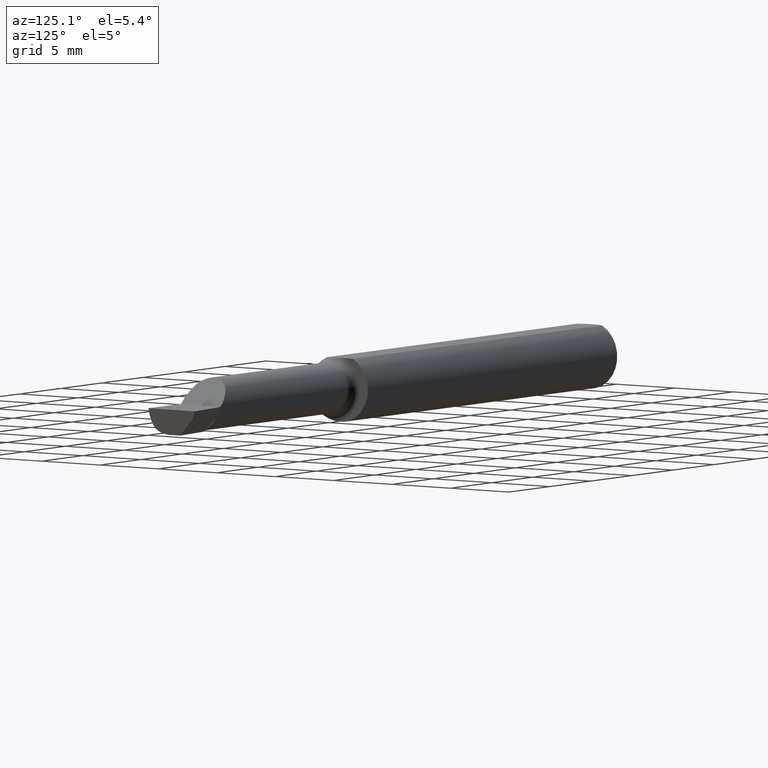
[diagram: clean part render]
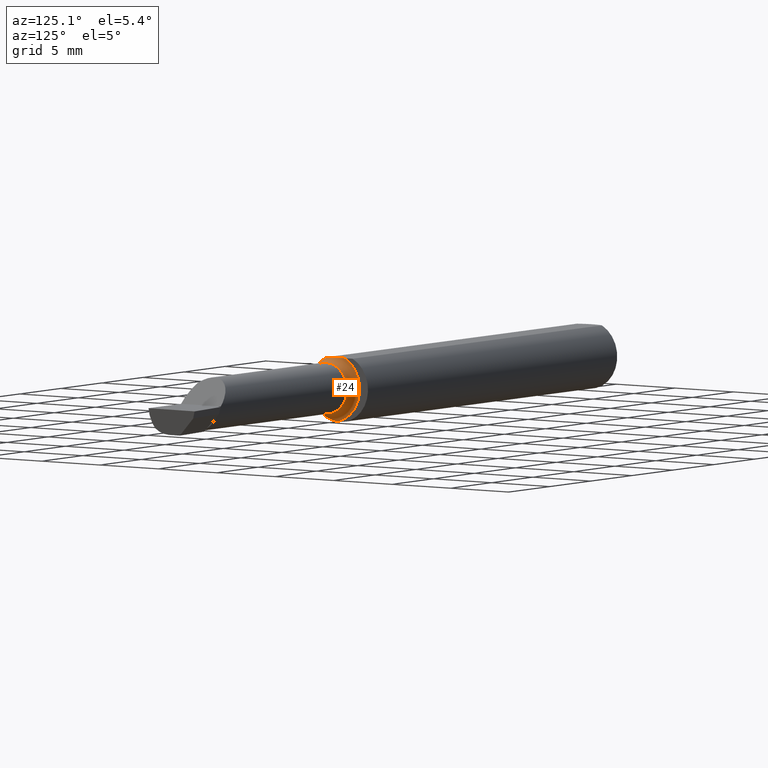
[diagram: same view with one face highlighted and labeled with its STEP entity id]
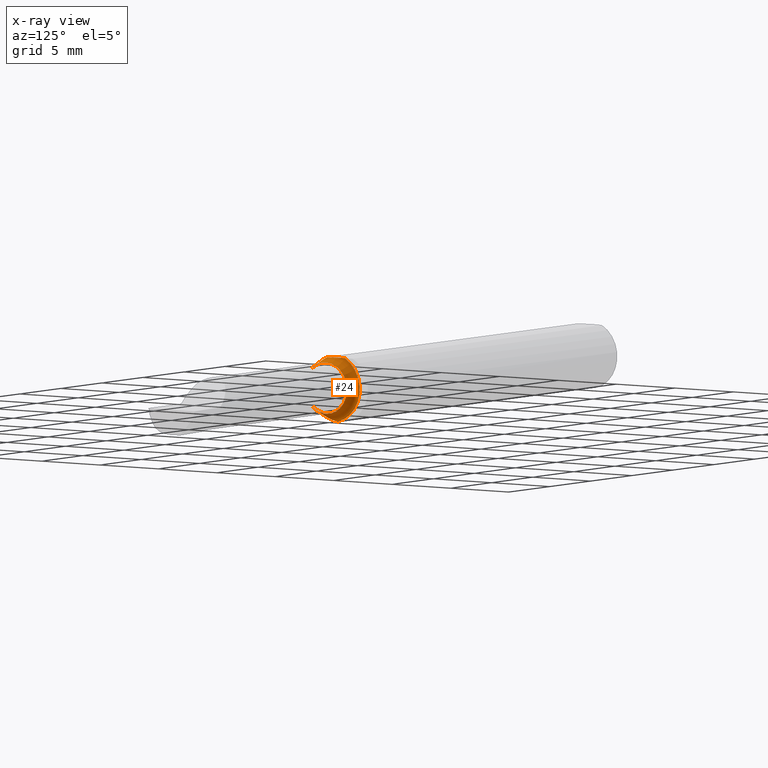
[diagram: x-ray of the same camera — body ghosted, the highlighted face saturated]
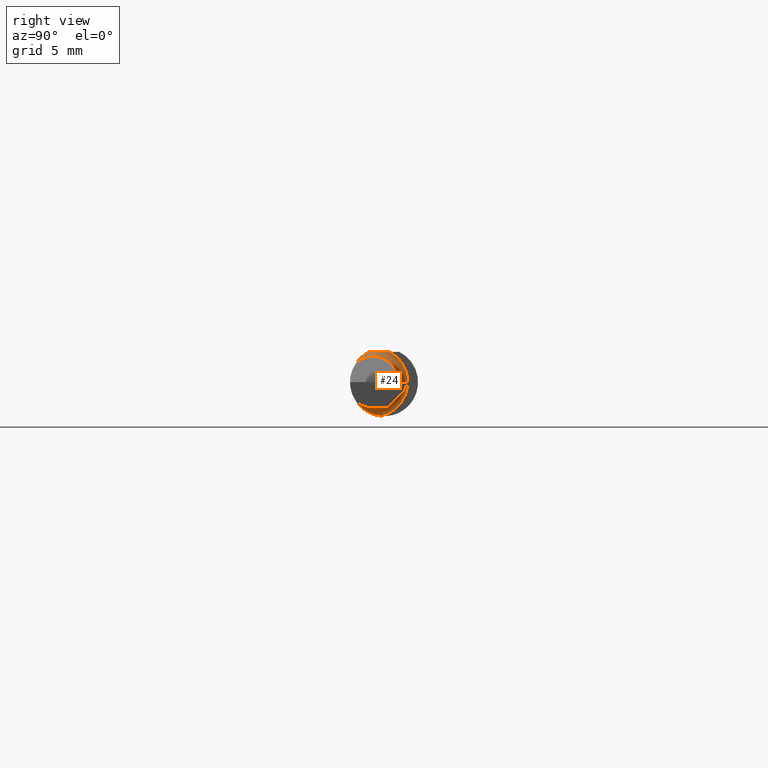
[diagram: same view with one face highlighted and labeled with its STEP entity id]
A machine part, auxiliary view. The second image highlights one B-rep face of the part: STEP entity #24.
The next image is the same camera in x-ray: the body ghosted, the highlighted face saturated — about 0% of this face is hidden behind the body in this view.
A second angle (right view) of the same face is appended — the face is thin or edge-on in the first view.
In plain terms, the highlighted toroidal blend (fillet) surface has major radius 2.4384 mm and minor (blend) radius 0.635 mm.
Its self-contained STEP definition (entity closure, byte-faithful):
#7 = CARTESIAN_POINT ( 'NONE',  ( 1.227249994923977461, -0.07326991650738474970, -0.05826485454810933357 ) ) ;
#24 = ADVANCED_FACE ( 'NONE', ( #382 ), #458, .F. ) ;
#44 = ORIENTED_EDGE ( 'NONE', *, *, #99, .F. ) ;
#49 = CARTESIAN_POINT ( 'NONE',  ( 1.222372878085588033, -0.06813570069660582207, -0.06426486695182642706 ) ) ;
#50 = CARTESIAN_POINT ( 'NONE',  ( 1.212861144841092864, -0.04209513036041390849, 0.08360000000000000764 ) ) ;
#51 = ORIENTED_EDGE ( 'NONE', *, *, #322, .T. ) ;
#53 = DIRECTION ( 'NONE',  ( -1.000000000000000000, -4.268512490100411279E-18, -0.000000000000000000 ) ) ;
#58 = DIRECTION ( 'NONE',  ( 0.000000000000000000, -1.000000000000000000, 0.000000000000000000 ) ) ;
#59 = VERTEX_POINT ( 'NONE', #50 ) ;
#85 = B_SPLINE_CURVE_WITH_KNOTS ( 'NONE', 3,
 ( #455, #318, #364, #321, #274, #267, #369, #177 ),
 .UNSPECIFIED., .F., .F.,
 ( 4, 2, 2, 4 ),
 ( 0.009574067517472211256, 0.01031724332539403835, 0.01068883122935495276, 0.01106041913331586718 ),
 .UNSPECIFIED. ) ;
#92 = B_SPLINE_CURVE_WITH_KNOTS ( 'NONE', 3,
 ( #582, #523, #296, #160, #7, #483, #49, #346, #489, #258, #446, #213, #114, #586 ),
 .UNSPECIFIED., .F., .F.,
 ( 4, 2, 2, 2, 2, 2, 4 ),
 ( 1.959461805732903391E-07, 0.0001418114856513832186, 0.0002834270251222010813, 0.0005666581040638365898, 0.001133120261947111402, 0.001699582419830386213, 0.002266044577713661242 ),
 .UNSPECIFIED. ) ;
#99 = EDGE_CURVE ( 'NONE', #283, #491, #299, .T. ) ;
#114 = CARTESIAN_POINT ( 'NONE',  ( 1.209999999999995746, -0.01523829271462613828, -0.09264723852076074684 ) ) ;
#134 = CARTESIAN_POINT ( 'NONE',  ( 1.220942860874688840, -0.06599234460544596559, 0.06650584501266759707 ) ) ;
#147 = VERTEX_POINT ( 'NONE', #154 ) ;
#154 = CARTESIAN_POINT ( 'NONE',  ( 1.234999999999999876, -0.07608366013071811429, -0.05451822320209421396 ) ) ;
#160 = CARTESIAN_POINT ( 'NONE',  ( 1.228446742734843999, -0.07415202900322766244, -0.05712995986028734929 ) ) ;
#165 = CARTESIAN_POINT ( 'NONE',  ( 1.234999999999999876, -0.03060000000000022771, 0.000000000000000000 ) ) ;
#171 = EDGE_CURVE ( 'NONE', #283, #59, #85, .T. ) ;
#177 = CARTESIAN_POINT ( 'NONE',  ( 1.212861144841092864, -0.04209513036041390849, 0.08360000000000000764 ) ) ;
#183 = CARTESIAN_POINT ( 'NONE',  ( 1.216341906786436500, -0.05682123740528505912, 0.07483672126184984230 ) ) ;
#197 = CARTESIAN_POINT ( 'NONE',  ( 1.222718485147074929, -0.06880529263944755447, 0.06356579742164532310 ) ) ;
#213 = CARTESIAN_POINT ( 'NONE',  ( 1.210327566746672412, -0.02246933888146969080, -0.09115683487700423915 ) ) ;
#237 = VERTEX_POINT ( 'NONE', #418 ) ;
#258 = CARTESIAN_POINT ( 'NONE',  ( 1.212858269845931369, -0.04306185800455388651, -0.08341374477435810342 ) ) ;
#267 = CARTESIAN_POINT ( 'NONE',  ( 1.213362255574652604, -0.03233437538769824704, 0.08360000000000003539 ) ) ;
#274 = CARTESIAN_POINT ( 'NONE',  ( 1.213154437539956110, -0.02258334521707476214, 0.08360000000000000764 ) ) ;
#283 = VERTEX_POINT ( 'NONE', #601 ) ;
#296 = CARTESIAN_POINT ( 'NONE',  ( 1.231360941731893810, -0.07557034852506704092, -0.05524018594043163255 ) ) ;
#299 = CIRCLE ( 'NONE', #460, 0.09600000000000015465 ) ;
#318 = CARTESIAN_POINT ( 'NONE',  ( 1.209999999999999742, 0.006742283091807376762, 0.08360000000000003539 ) ) ;
#321 = CARTESIAN_POINT ( 'NONE',  ( 1.212798152027436682, -0.01771129213186534504, 0.08360000000000003539 ) ) ;
#322 = EDGE_CURVE ( 'NONE', #59, #237, #575, .T. ) ;
#326 = CARTESIAN_POINT ( 'NONE',  ( 1.234999999999999876, -0.07608366013071811429, 0.05451822320209421396 ) ) ;
#343 = CIRCLE ( 'NONE', #395, 0.07100000000000014633 ) ;
#346 = CARTESIAN_POINT ( 'NONE',  ( 1.218052623108271115, -0.06089616178095316051, -0.07140423527607847598 ) ) ;
#364 = CARTESIAN_POINT ( 'NONE',  ( 1.211387404401340406, -0.003099822801829066159, 0.08359999999999999376 ) ) ;
#369 = CARTESIAN_POINT ( 'NONE',  ( 1.213209978243261711, -0.03721340473516406011, 0.08360000000000000764 ) ) ;
#381 = CARTESIAN_POINT ( 'NONE',  ( 1.227524991500364981, -0.07354719313698337979, 0.05791404302443237812 ) ) ;
#382 = FACE_OUTER_BOUND ( 'NONE', #434, .T. ) ;
#395 = AXIS2_PLACEMENT_3D ( 'NONE', #165, #53, #398 ) ;
#398 = DIRECTION ( 'NONE',  ( 0.000000000000000000, -1.000000000000000000, 0.000000000000000000 ) ) ;
#409 = ORIENTED_EDGE ( 'NONE', *, *, #171, .T. ) ;
#418 = CARTESIAN_POINT ( 'NONE',  ( 1.234999999999999876, -0.07608366013071811429, 0.05451822320209421396 ) ) ;
#424 = CARTESIAN_POINT ( 'NONE',  ( 1.212861144841092864, -0.04209513036041390849, 0.08360000000000000764 ) ) ;
#434 = EDGE_LOOP ( 'NONE', ( #485, #44, #409, #51, #572 ) ) ;
#446 = CARTESIAN_POINT ( 'NONE',  ( 1.211750924354898951, -0.03635445752162108635, -0.08656092162675017854 ) ) ;
#449 = DIRECTION ( 'NONE',  ( -1.000000000000000000, -4.268512490100411279E-18, -0.000000000000000000 ) ) ;
#455 = CARTESIAN_POINT ( 'NONE',  ( 1.209999999999999964, 0.01659152466280365210, 0.08360000000000000764 ) ) ;
#458 = TOROIDAL_SURFACE ( 'NONE', #615, 0.09600000000000015465, 0.02499999999999993894 ) ;
#460 = AXIS2_PLACEMENT_3D ( 'NONE', #487, #527, #58 ) ;
#483 = CARTESIAN_POINT ( 'NONE',  ( 1.224014441612382820, -0.07037190759423141151, -0.06179005084634876799 ) ) ;
#485 = ORIENTED_EDGE ( 'NONE', *, *, #573, .T. ) ;
#487 = CARTESIAN_POINT ( 'NONE',  ( 1.209999999999999964, -0.03060000000000022771, 0.000000000000000000 ) ) ;
#489 = CARTESIAN_POINT ( 'NONE',  ( 1.216007506249286996, -0.05524264031795321495, -0.07589747771031243873 ) ) ;
#491 = VERTEX_POINT ( 'NONE', #526 ) ;
#507 = EDGE_CURVE ( 'NONE', #237, #147, #343, .T. ) ;
#514 = CARTESIAN_POINT ( 'NONE',  ( 1.230753778368558482, -0.07537148234687032766, 0.05551905660761850825 ) ) ;
#516 = CARTESIAN_POINT ( 'NONE',  ( 1.214336437763706034, -0.04985092026457538933, 0.07969472503477174896 ) ) ;
#521 = DIRECTION ( 'NONE',  ( 4.268512490100411279E-18, -1.000000000000000000, 0.000000000000000000 ) ) ;
#523 = CARTESIAN_POINT ( 'NONE',  ( 1.233103322019917014, -0.07608366013071814205, -0.05451822320209429723 ) ) ;
#526 = CARTESIAN_POINT ( 'NONE',  ( 1.209999999999999964, -0.007864705882352667973, -0.09326900021649256467 ) ) ;
#527 = DIRECTION ( 'NONE',  ( -1.000000000000000000, -4.268512490100411279E-18, -0.000000000000000000 ) ) ;
#569 = CARTESIAN_POINT ( 'NONE',  ( 1.234999999999999876, -0.03060000000000022424, 0.000000000000000000 ) ) ;
#572 = ORIENTED_EDGE ( 'NONE', *, *, #507, .T. ) ;
#573 = EDGE_CURVE ( 'NONE', #147, #491, #92, .T. ) ;
#575 = B_SPLINE_CURVE_WITH_KNOTS ( 'NONE', 3,
 ( #424, #516, #183, #134, #197, #617, #381, #514, #612, #326 ),
 .UNSPECIFIED., .F., .F.,
 ( 4, 2, 2, 2, 4 ),
 ( 4.459497342987283315E-07, 0.0006638717458672108900, 0.0009955846439336653829, 0.001161441092966892900, 0.001327297542000120418 ),
 .UNSPECIFIED. ) ;
#582 = CARTESIAN_POINT ( 'NONE',  ( 1.234999999999999876, -0.07608366013071811429, -0.05451822320209421396 ) ) ;
#586 = CARTESIAN_POINT ( 'NONE',  ( 1.209999999999999964, -0.007864705882352667973, -0.09326900021649256467 ) ) ;
#601 = CARTESIAN_POINT ( 'NONE',  ( 1.209999999999999964, 0.01659152466280365210, 0.08360000000000000764 ) ) ;
#612 = CARTESIAN_POINT ( 'NONE',  ( 1.232761054724242467, -0.07608366013204306832, 0.05451822320024542895 ) ) ;
#615 = AXIS2_PLACEMENT_3D ( 'NONE', #569, #449, #521 ) ;
#617 = CARTESIAN_POINT ( 'NONE',  ( 1.226209588651319349, -0.07242362088648865437, 0.05932313091832382840 ) ) ;